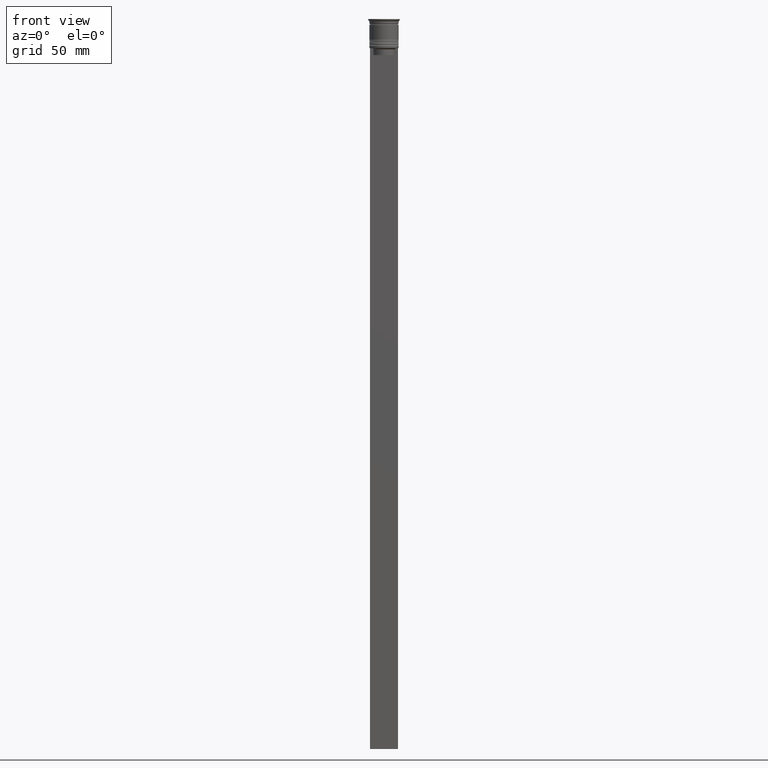
[diagram: clean part render]
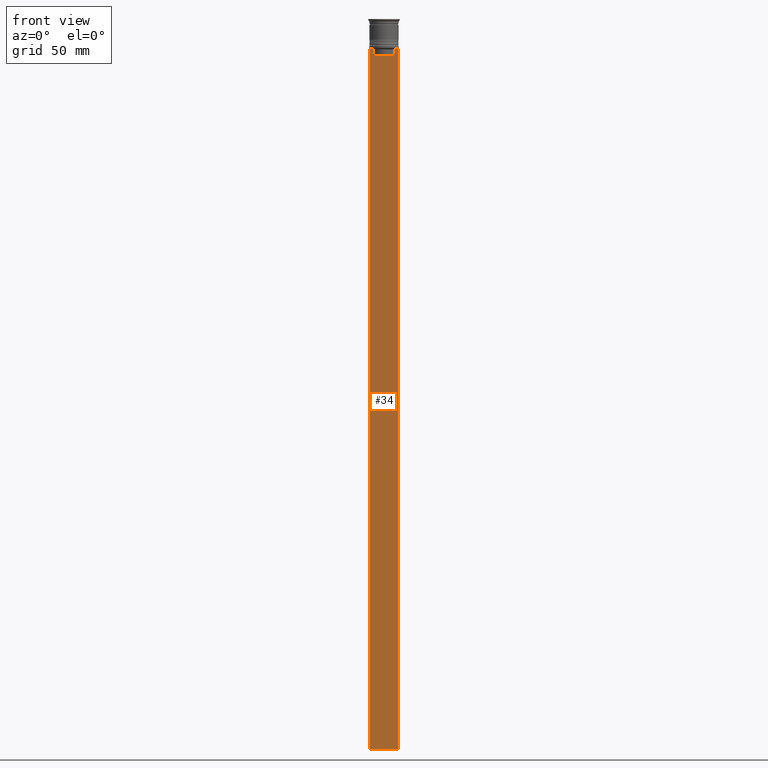
[diagram: same view with one face highlighted and labeled with its STEP entity id]
A machine part, front view. The second image highlights one B-rep face of the part: STEP entity #34.
In plain terms, the highlighted planar face has unit normal (0, -1, -0).
Its self-contained STEP definition (entity closure, byte-faithful):
#3 = DIRECTION ( 'NONE',  ( 0.000000000000000000, -1.000000000000000000, -0.000000000000000000 ) ) ;
#34 = ADVANCED_FACE ( 'NONE', ( #1669 ), #365, .T. ) ;
#54 = CARTESIAN_POINT ( 'NONE',  ( -5.999999999999983125, -0.5000000000000017764, -12.50000000000000000 ) ) ;
#81 = VERTEX_POINT ( 'NONE', #54 ) ;
#84 = VERTEX_POINT ( 'NONE', #1855 ) ;
#103 = ORIENTED_EDGE ( 'NONE', *, *, #1995, .F. ) ;
#113 = CARTESIAN_POINT ( 'NONE',  ( 0.000000000000000000, -0.5000000000000022204, -15.50000000000000000 ) ) ;
#115 = ORIENTED_EDGE ( 'NONE', *, *, #723, .T. ) ;
#124 = EDGE_CURVE ( 'NONE', #1227, #868, #1988, .T. ) ;
#167 = VERTEX_POINT ( 'NONE', #1191 ) ;
#177 = AXIS2_PLACEMENT_3D ( 'NONE', #194, #3, #1108 ) ;
#192 = EDGE_CURVE ( 'NONE', #1167, #743, #987, .T. ) ;
#194 = CARTESIAN_POINT ( 'NONE',  ( 6.000000000000016875, -0.5000000000000017764, -0.4584054212077061097 ) ) ;
#210 = CARTESIAN_POINT ( 'NONE',  ( 6.000000000000016875, -0.5000000000000017764, -12.50000000000000000 ) ) ;
#249 = DIRECTION ( 'NONE',  ( 1.000000000000000000, 0.000000000000000000, 0.000000000000000000 ) ) ;
#250 = VECTOR ( 'NONE', #388, 1000.000000000000000 ) ;
#287 = CARTESIAN_POINT ( 'NONE',  ( 4.958169719475987947, -0.5000000000000017764, -12.66670967060858111 ) ) ;
#365 = PLANE ( 'NONE',  #177 ) ;
#388 = DIRECTION ( 'NONE',  ( -1.000000000000000000, 0.000000000000000000, 0.000000000000000000 ) ) ;
#394 = CARTESIAN_POINT ( 'NONE',  ( -5.125670687822231564, -0.5000000000000017764, -12.50000000000000000 ) ) ;
#398 = VECTOR ( 'NONE', #1728, 1000.000000000000000 ) ;
#409 = ORIENTED_EDGE ( 'NONE', *, *, #1664, .F. ) ;
#462 = VECTOR ( 'NONE', #2279, 1000.000000000000000 ) ;
#468 = CARTESIAN_POINT ( 'NONE',  ( 4.623040125285526436, -0.5000000000000017764, -13.00000000000000178 ) ) ;
#536 = CARTESIAN_POINT ( 'NONE',  ( 6.000000000000016875, -0.5000000000000017764, -312.5000000000000000 ) ) ;
#541 = LINE ( 'NONE', #2003, #585 ) ;
#585 = VECTOR ( 'NONE', #2200, 1000.000000000000000 ) ;
#603 = ORIENTED_EDGE ( 'NONE', *, *, #1365, .F. ) ;
#610 = EDGE_CURVE ( 'NONE', #940, #167, #1917, .T. ) ;
#642 = LINE ( 'NONE', #1876, #1010 ) ;
#723 = EDGE_CURVE ( 'NONE', #81, #868, #1094, .T. ) ;
#743 = VERTEX_POINT ( 'NONE', #1285 ) ;
#833 = ORIENTED_EDGE ( 'NONE', *, *, #1136, .F. ) ;
#857 = CARTESIAN_POINT ( 'NONE',  ( 4.790630799407577634, -0.5000000000000017764, -12.83338098686238915 ) ) ;
#868 = VERTEX_POINT ( 'NONE', #1922 ) ;
#881 = DIRECTION ( 'NONE',  ( 0.000000000000000000, 0.000000000000000000, -1.000000000000000000 ) ) ;
#888 = CARTESIAN_POINT ( 'NONE',  ( -4.958169823806760412, -0.5000000000000017764, -12.66670956677067927 ) ) ;
#940 = VERTEX_POINT ( 'NONE', #1061 ) ;
#966 = VERTEX_POINT ( 'NONE', #1029 ) ;
#976 = ORIENTED_EDGE ( 'NONE', *, *, #124, .F. ) ;
#987 = LINE ( 'NONE', #113, #398 ) ;
#995 = CARTESIAN_POINT ( 'NONE',  ( 4.623040125285526436, -0.5000000000000017764, 0.000000000000000000 ) ) ;
#1010 = VECTOR ( 'NONE', #249, 1000.000000000000000 ) ;
#1029 = CARTESIAN_POINT ( 'NONE',  ( -5.125670687822231564, -0.5000000000000017764, -12.50000000000000000 ) ) ;
#1061 = CARTESIAN_POINT ( 'NONE',  ( 4.623040125285526436, -0.5000000000000017764, -13.00000000000000178 ) ) ;
#1081 = CARTESIAN_POINT ( 'NONE',  ( -5.999999999999983125, -0.5000000000000017764, -0.4584054212077061097 ) ) ;
#1094 = LINE ( 'NONE', #1081, #1871 ) ;
#1108 = DIRECTION ( 'NONE',  ( 0.000000000000000000, 0.000000000000000000, -1.000000000000000000 ) ) ;
#1129 = DIRECTION ( 'NONE',  ( -0.000000000000000000, -0.000000000000000000, 1.000000000000000000 ) ) ;
#1135 = LINE ( 'NONE', #1144, #1140 ) ;
#1136 = EDGE_CURVE ( 'NONE', #1925, #1227, #541, .T. ) ;
#1140 = VECTOR ( 'NONE', #2232, 1000.000000000000000 ) ;
#1144 = CARTESIAN_POINT ( 'NONE',  ( 6.000000000000016875, -0.5000000000000017764, -12.50000000000000000 ) ) ;
#1167 = VERTEX_POINT ( 'NONE', #1993 ) ;
#1191 = CARTESIAN_POINT ( 'NONE',  ( 5.125670687822231564, -0.5000000000000017764, -12.50000000000000000 ) ) ;
#1227 = VERTEX_POINT ( 'NONE', #1289 ) ;
#1285 = CARTESIAN_POINT ( 'NONE',  ( 4.623040125285526436, -0.5000000000000022204, -15.50000000000000000 ) ) ;
#1289 = CARTESIAN_POINT ( 'NONE',  ( 6.000000000000016875, -0.5000000000000017764, -312.5000000000000000 ) ) ;
#1365 = EDGE_CURVE ( 'NONE', #167, #1925, #642, .T. ) ;
#1371 = ORIENTED_EDGE ( 'NONE', *, *, #610, .F. ) ;
#1391 = CARTESIAN_POINT ( 'NONE',  ( -4.623040125285526436, -0.5000000000000017764, 0.000000000000000000 ) ) ;
#1615 = CARTESIAN_POINT ( 'NONE',  ( -4.623040125285526436, -0.5000000000000017764, -13.00000000000000178 ) ) ;
#1664 = EDGE_CURVE ( 'NONE', #743, #940, #1853, .T. ) ;
#1669 = FACE_OUTER_BOUND ( 'NONE', #1741, .T. ) ;
#1728 = DIRECTION ( 'NONE',  ( 1.000000000000000000, 0.000000000000000000, 0.000000000000000000 ) ) ;
#1739 = CARTESIAN_POINT ( 'NONE',  ( 5.125670687822231564, -0.5000000000000017764, -12.50000000000000000 ) ) ;
#1741 = EDGE_LOOP ( 'NONE', ( #103, #2143, #115, #976, #833, #603, #1371, #409, #1890, #1918 ) ) ;
#1840 = CARTESIAN_POINT ( 'NONE',  ( -4.790630915080664742, -0.5000000000000017764, -12.83338087185995491 ) ) ;
#1853 = LINE ( 'NONE', #995, #1984 ) ;
#1855 = CARTESIAN_POINT ( 'NONE',  ( -4.623040125285526436, -0.5000000000000017764, -13.00000000000000178 ) ) ;
#1871 = VECTOR ( 'NONE', #881, 1000.000000000000000 ) ;
#1876 = CARTESIAN_POINT ( 'NONE',  ( 6.000000000000016875, -0.5000000000000017764, -12.50000000000000000 ) ) ;
#1890 = ORIENTED_EDGE ( 'NONE', *, *, #192, .F. ) ;
#1895 = LINE ( 'NONE', #1391, #462 ) ;
#1917 = B_SPLINE_CURVE_WITH_KNOTS ( 'NONE', 3,
 ( #468, #857, #287, #1739 ),
 .UNSPECIFIED., .F., .F.,
 ( 4, 4 ),
 ( 0.02203698174624552780, 0.02275222543365896383 ),
 .UNSPECIFIED. ) ;
#1918 = ORIENTED_EDGE ( 'NONE', *, *, #2332, .F. ) ;
#1922 = CARTESIAN_POINT ( 'NONE',  ( -5.999999999999983125, -0.5000000000000017764, -312.5000000000000000 ) ) ;
#1925 = VERTEX_POINT ( 'NONE', #210 ) ;
#1984 = VECTOR ( 'NONE', #1129, 1000.000000000000000 ) ;
#1988 = LINE ( 'NONE', #536, #250 ) ;
#1993 = CARTESIAN_POINT ( 'NONE',  ( -4.623040125285526436, -0.5000000000000022204, -15.50000000000000000 ) ) ;
#1995 = EDGE_CURVE ( 'NONE', #966, #84, #2023, .T. ) ;
#2003 = CARTESIAN_POINT ( 'NONE',  ( 6.000000000000016875, -0.5000000000000017764, -0.4584054212077061097 ) ) ;
#2023 = B_SPLINE_CURVE_WITH_KNOTS ( 'NONE', 3,
 ( #394, #888, #1840, #1615 ),
 .UNSPECIFIED., .F., .F.,
 ( 4, 4 ),
 ( 0.008759809102772709091, 0.009468778395565353653 ),
 .UNSPECIFIED. ) ;
#2143 = ORIENTED_EDGE ( 'NONE', *, *, #2207, .F. ) ;
#2200 = DIRECTION ( 'NONE',  ( 0.000000000000000000, 0.000000000000000000, -1.000000000000000000 ) ) ;
#2207 = EDGE_CURVE ( 'NONE', #81, #966, #1135, .T. ) ;
#2232 = DIRECTION ( 'NONE',  ( 1.000000000000000000, 0.000000000000000000, 0.000000000000000000 ) ) ;
#2279 = DIRECTION ( 'NONE',  ( 0.000000000000000000, 0.000000000000000000, -1.000000000000000000 ) ) ;
#2332 = EDGE_CURVE ( 'NONE', #84, #1167, #1895, .T. ) ;